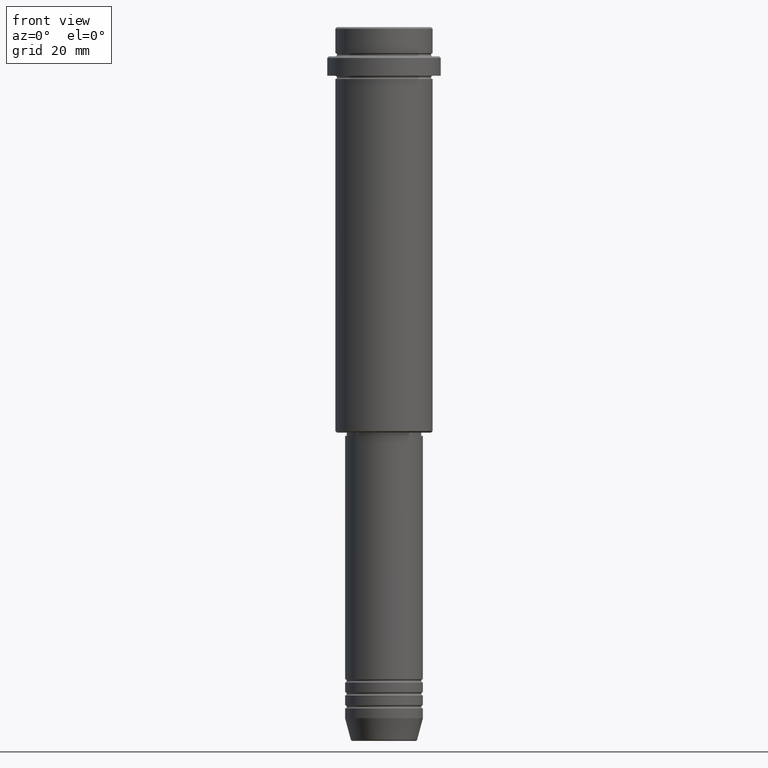
[diagram: clean part render]
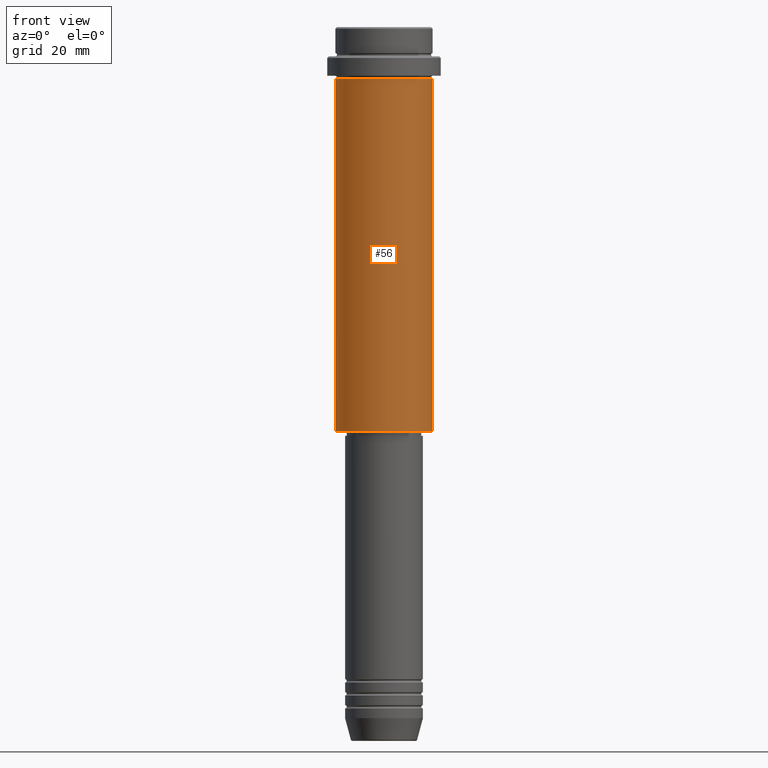
[diagram: same view with one face highlighted and labeled with its STEP entity id]
A machine part, front view. The second image highlights one B-rep face of the part: STEP entity #56.
In plain terms, the highlighted cylindrical surface (partial cylindrical patch) has radius 15 mm, axis along (-0, -0, 1).
Its self-contained STEP definition (entity closure, byte-faithful):
#45 = ORIENTED_EDGE ( 'NONE', *, *, #394, .F. ) ;
#56 = ADVANCED_FACE ( 'NONE', ( #404 ), #527, .T. ) ;
#90 = CIRCLE ( 'NONE', #383, 15.00000000000000000 ) ;
#247 = DIRECTION ( 'NONE',  ( -1.000000000000000000, 0.000000000000000000, 0.000000000000000000 ) ) ;
#249 = LINE ( 'NONE', #897, #1271 ) ;
#305 = EDGE_CURVE ( 'NONE', #472, #714, #90, .T. ) ;
#339 = CARTESIAN_POINT ( 'NONE',  ( -15.00000000000000000, 1.836970198721029589E-15, 0.000000000000000000 ) ) ;
#383 = AXIS2_PLACEMENT_3D ( 'NONE', #1330, #772, #247 ) ;
#384 = CARTESIAN_POINT ( 'NONE',  ( -15.00000000000000355, 1.836970198721029983E-15, -16.00000000000000000 ) ) ;
#394 = EDGE_CURVE ( 'NONE', #449, #1029, #585, .T. ) ;
#404 = FACE_OUTER_BOUND ( 'NONE', #938, .T. ) ;
#449 = VERTEX_POINT ( 'NONE', #384 ) ;
#464 = DIRECTION ( 'NONE',  ( -0.000000000000000000, -0.000000000000000000, 1.000000000000000000 ) ) ;
#468 = CARTESIAN_POINT ( 'NONE',  ( 15.00000000000000000, 0.000000000000000000, -124.4999999999999574 ) ) ;
#472 = VERTEX_POINT ( 'NONE', #509 ) ;
#509 = CARTESIAN_POINT ( 'NONE',  ( -15.00000000000000000, 1.836970198721029589E-15, -124.4999999999999574 ) ) ;
#523 = CARTESIAN_POINT ( 'NONE',  ( 0.000000000000000000, 0.000000000000000000, 0.000000000000000000 ) ) ;
#527 = CYLINDRICAL_SURFACE ( 'NONE', #647, 15.00000000000000000 ) ;
#543 = EDGE_CURVE ( 'NONE', #714, #1029, #249, .T. ) ;
#585 = CIRCLE ( 'NONE', #652, 15.00000000000000178 ) ;
#610 = VECTOR ( 'NONE', #671, 1000.000000000000000 ) ;
#630 = DIRECTION ( 'NONE',  ( -0.000000000000000000, -0.000000000000000000, 1.000000000000000000 ) ) ;
#647 = AXIS2_PLACEMENT_3D ( 'NONE', #523, #630, #1080 ) ;
#652 = AXIS2_PLACEMENT_3D ( 'NONE', #1239, #929, #716 ) ;
#671 = DIRECTION ( 'NONE',  ( -0.000000000000000000, -0.000000000000000000, 1.000000000000000000 ) ) ;
#714 = VERTEX_POINT ( 'NONE', #468 ) ;
#716 = DIRECTION ( 'NONE',  ( 1.000000000000000000, 0.000000000000000000, 0.000000000000000000 ) ) ;
#772 = DIRECTION ( 'NONE',  ( -0.000000000000000000, -0.000000000000000000, 1.000000000000000000 ) ) ;
#790 = ORIENTED_EDGE ( 'NONE', *, *, #1154, .F. ) ;
#845 = ORIENTED_EDGE ( 'NONE', *, *, #305, .T. ) ;
#897 = CARTESIAN_POINT ( 'NONE',  ( 15.00000000000000000, 0.000000000000000000, 0.000000000000000000 ) ) ;
#929 = DIRECTION ( 'NONE',  ( -0.000000000000000000, -0.000000000000000000, 1.000000000000000000 ) ) ;
#938 = EDGE_LOOP ( 'NONE', ( #790, #845, #1010, #45 ) ) ;
#979 = LINE ( 'NONE', #339, #610 ) ;
#981 = CARTESIAN_POINT ( 'NONE',  ( 15.00000000000000178, 0.000000000000000000, -16.00000000000000000 ) ) ;
#1010 = ORIENTED_EDGE ( 'NONE', *, *, #543, .T. ) ;
#1029 = VERTEX_POINT ( 'NONE', #981 ) ;
#1080 = DIRECTION ( 'NONE',  ( 1.000000000000000000, 0.000000000000000000, 0.000000000000000000 ) ) ;
#1154 = EDGE_CURVE ( 'NONE', #472, #449, #979, .T. ) ;
#1239 = CARTESIAN_POINT ( 'NONE',  ( 0.000000000000000000, 0.000000000000000000, -16.00000000000000000 ) ) ;
#1271 = VECTOR ( 'NONE', #464, 1000.000000000000000 ) ;
#1330 = CARTESIAN_POINT ( 'NONE',  ( 0.000000000000000000, 0.000000000000000000, -124.4999999999999574 ) ) ;